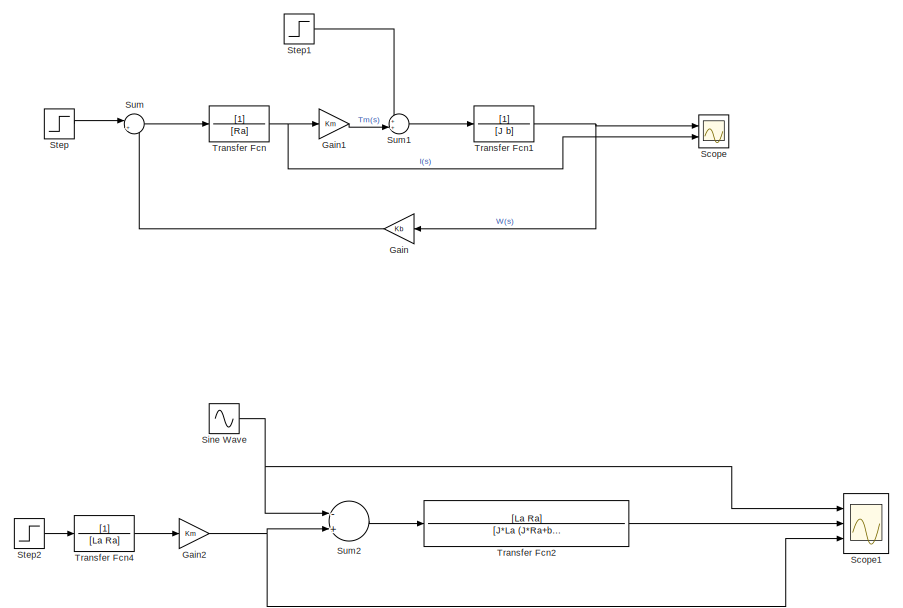
[diagram: root canvas - part 1/5, top left region]
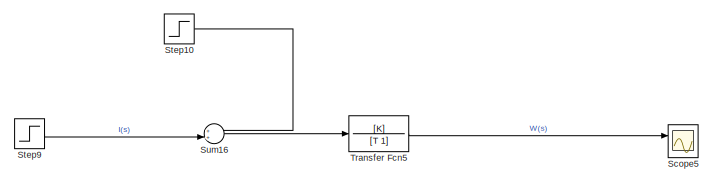
[diagram: root canvas - part 2/5, top center region]
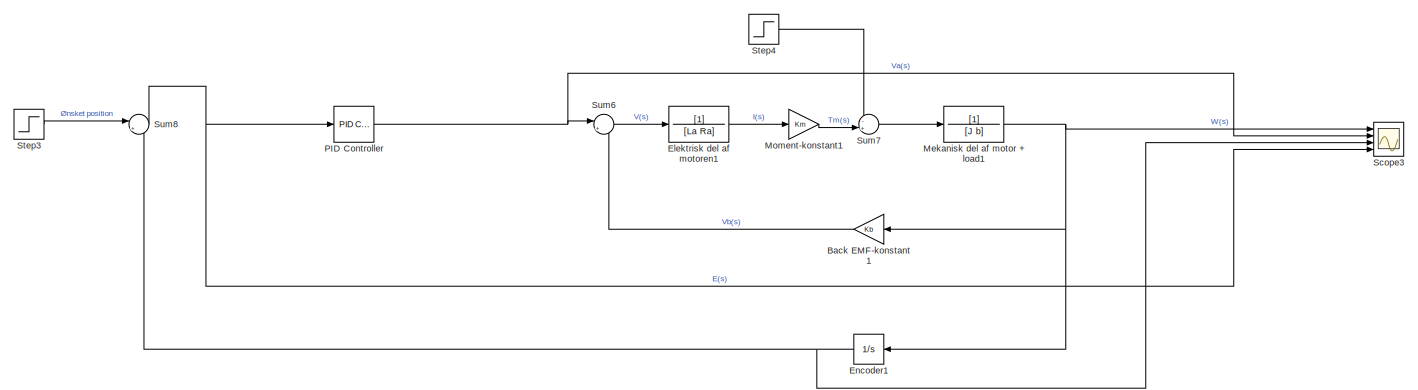
[diagram: root canvas - part 3/5, middle right region]
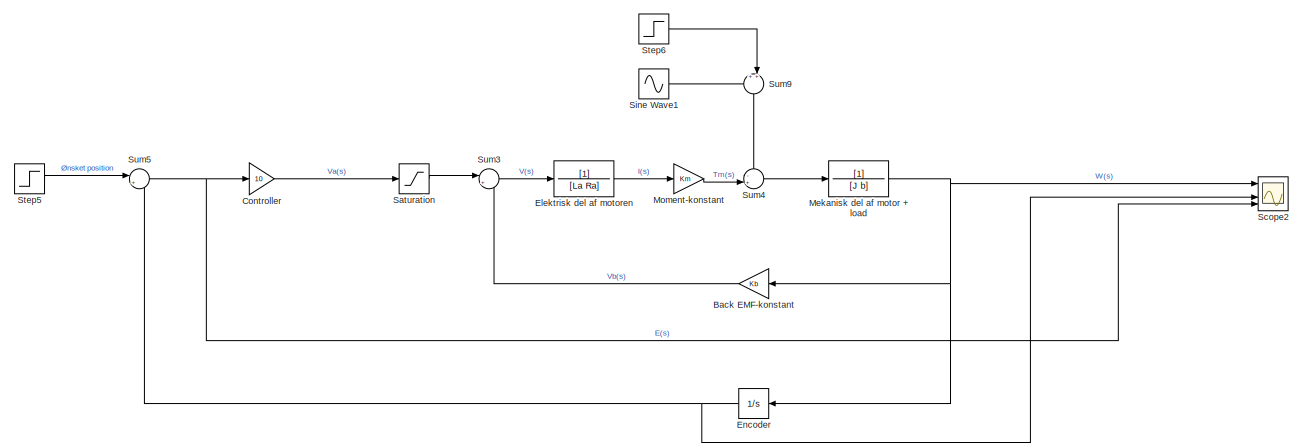
[diagram: root canvas - part 4/5, bottom left region]
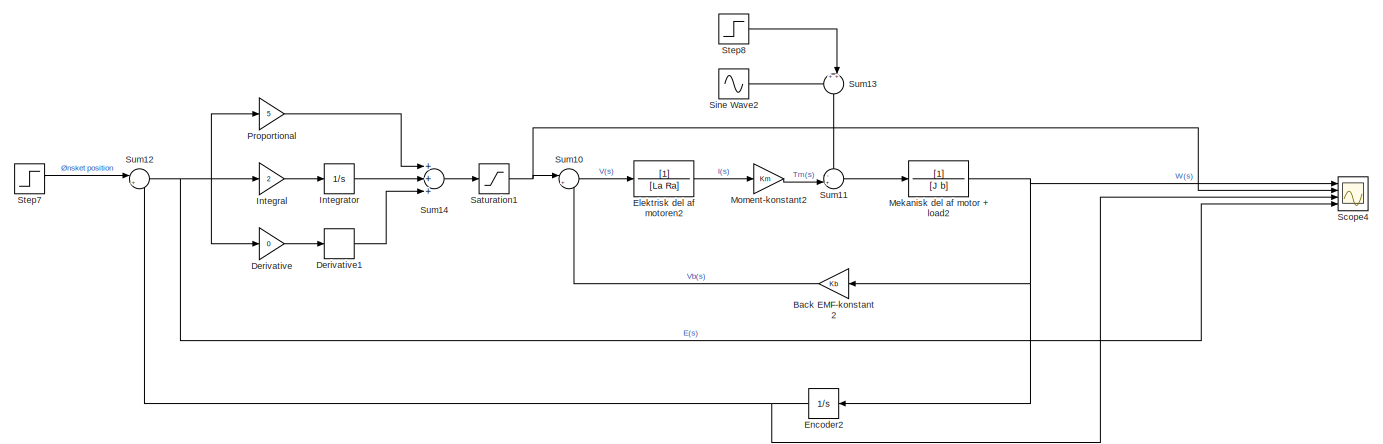
[diagram: root canvas - part 5/5, bottom right region]
MODEL slx_11c34193d39f
KIND model
CONFIG AbsTol = auto
CONFIG FixedStep = auto
CONFIG MaxStep = auto
CONFIG MinStep = auto
CONFIG RelTol = 1e-3
CONFIG SampleTimeConstraint = Unconstrained
CONFIG Solver = VariableStepAuto
CONFIG SolverMode = Auto
CONFIG SolverName = VariableStepAuto
CONFIG StartTime = 0.0
CONFIG StopTime = 5
BLOCK [Gain] Back EMF-konstant
  Gain = Kb
  OutDataTypeStr = Inherit: Inherit via internal rule
  ParamDataTypeStr = Inherit: Inherit via internal rule
  SaturateOnIntegerOverflow = off
BLOCK [Gain] Back EMF-konstant1
  Gain = Kb
  OutDataTypeStr = Inherit: Inherit via internal rule
  ParamDataTypeStr = Inherit: Inherit via internal rule
  SaturateOnIntegerOverflow = off
BLOCK [Gain] Back EMF-konstant2
  Gain = Kb
  OutDataTypeStr = Inherit: Inherit via internal rule
  ParamDataTypeStr = Inherit: Inherit via internal rule
  SaturateOnIntegerOverflow = off
BLOCK [Gain] Controller
  Gain = 10
  OutDataTypeStr = Inherit: Inherit via internal rule
  OutMax = 5
  OutMin = -5
  ParamDataTypeStr = Inherit: Inherit via internal rule
  SaturateOnIntegerOverflow = off
BLOCK [Gain] Derivative
  Gain = 0
  OutDataTypeStr = Inherit: Inherit via internal rule
  OutMax = 5
  OutMin = -5
  ParamDataTypeStr = Inherit: Inherit via internal rule
  SaturateOnIntegerOverflow = off
BLOCK [Derivative] Derivative1
BLOCK [TransferFcn] Elektrisk del af motoren
  Denominator = [La Ra]
BLOCK [TransferFcn] Elektrisk del af motoren1
  Denominator = [La Ra]
BLOCK [TransferFcn] Elektrisk del af motoren2
  Denominator = [La Ra]
BLOCK [Integrator] Encoder
  Ports = [1, 1]
BLOCK [Integrator] Encoder1
  Ports = [1, 1]
BLOCK [Integrator] Encoder2
  Ports = [1, 1]
BLOCK [Gain] Gain
  Gain = Kb
  OutDataTypeStr = Inherit: Inherit via internal rule
  ParamDataTypeStr = Inherit: Inherit via internal rule
  SaturateOnIntegerOverflow = off
BLOCK [Gain] Gain1
  Gain = Km
  OutDataTypeStr = Inherit: Inherit via internal rule
  ParamDataTypeStr = Inherit: Inherit via internal rule
  SaturateOnIntegerOverflow = off
BLOCK [Gain] Gain2
  Gain = Km
  OutDataTypeStr = Inherit: Inherit via internal rule
  ParamDataTypeStr = Inherit: Inherit via internal rule
  SaturateOnIntegerOverflow = off
BLOCK [Gain] Integral
  Gain = 2
  OutDataTypeStr = Inherit: Inherit via internal rule
  OutMax = 5
  OutMin = -5
  ParamDataTypeStr = Inherit: Inherit via internal rule
  SaturateOnIntegerOverflow = off
BLOCK [Integrator] Integrator
  Ports = [1, 1]
BLOCK [TransferFcn] Mekanisk del af motor + load
  Denominator = [J b]
BLOCK [TransferFcn] Mekanisk del af motor + load1
  Denominator = [J b]
BLOCK [TransferFcn] Mekanisk del af motor + load2
  Denominator = [J b]
BLOCK [Gain] Moment-konstant
  Gain = Km
  OutDataTypeStr = Inherit: Inherit via internal rule
  ParamDataTypeStr = Inherit: Inherit via internal rule
  SaturateOnIntegerOverflow = off
BLOCK [Gain] Moment-konstant1
  Gain = Km
  OutDataTypeStr = Inherit: Inherit via internal rule
  ParamDataTypeStr = Inherit: Inherit via internal rule
  SaturateOnIntegerOverflow = off
BLOCK [Gain] Moment-konstant2
  Gain = Km
  OutDataTypeStr = Inherit: Inherit via internal rule
  ParamDataTypeStr = Inherit: Inherit via internal rule
  SaturateOnIntegerOverflow = off
BLOCK [Reference] PID Controller  REF=simulink/Continuous/PID Controller
  Ports = [1, 1]
  SourceBlock = simulink/Continuous/PID Controller
  SourceType = PID 1dof
BLOCK [Gain] Proportional
  Gain = 5
  OutDataTypeStr = Inherit: Inherit via internal rule
  OutMax = 5
  OutMin = -5
  ParamDataTypeStr = Inherit: Inherit via internal rule
  SaturateOnIntegerOverflow = off
BLOCK [Saturate] Saturation
  InputPortMap = u0
  LowerLimit = -5
  Ports = [1, 1]
  UpperLimit = 5
BLOCK [Saturate] Saturation1
  InputPortMap = u0
  LowerLimit = -5
  Ports = [1, 1]
  UpperLimit = 5
BLOCK [Scope] Scope
  NumInputPorts = 2
  Ports = [2]
  ScopeSpecificationString = Simulink.scopes.TimeScopeBlockCfg('CurrentConfiguration', extmgr.ConfigurationSet(extmgr.Configuration('Core','General UI',true),extmgr.Configuration('Core','Source UI',true),extmgr.Configuration('Sources','WiredSimulink',true),extmgr.Configuration('Visuals','Time Domain',true,'SerializedDisplays',{struct('MinYLimReal','-2.45897','MaxYLimReal','54.75838','YLabelReal','','MinYLimMag','0.00000','Max...<+1406ch>
BLOCK [Scope] Scope1
  NumInputPorts = 3
  Ports = [3]
  ScopeSpecificationString = Simulink.scopes.TimeScopeBlockCfg('CurrentConfiguration', extmgr.ConfigurationSet(extmgr.Configuration('Core','General UI',true),extmgr.Configuration('Core','Source UI',true),extmgr.Configuration('Sources','WiredSimulink',true,'DataLoggingVariableName','ScopeData1'),extmgr.Configuration('Visuals','Time Domain',true,'SerializedDisplays',{struct('MinYLimReal','-14.23528','MaxYLimReal','52.55032','YL...<+1470ch>
BLOCK [Scope] Scope2
  NumInputPorts = 4
  Ports = [4]
  ScopeSpecificationString = Simulink.scopes.TimeScopeBlockCfg('CurrentConfiguration', extmgr.ConfigurationSet(extmgr.Configuration('Core','General UI',true),extmgr.Configuration('Core','Source UI',true),extmgr.Configuration('Sources','WiredSimulink',true,'DataLoggingVariableName','ScopeData1'),extmgr.Configuration('Visuals','Time Domain',true,'SerializedDisplays',{struct('MinYLimReal','-4.75647','MaxYLimReal','11.97012','YLa...<+1470ch>
BLOCK [Scope] Scope3
  NumInputPorts = 4
  Ports = [4]
  ScopeSpecificationString = Simulink.scopes.TimeScopeBlockCfg('CurrentConfiguration', extmgr.ConfigurationSet(extmgr.Configuration('Core','General UI',true),extmgr.Configuration('Core','Source UI',true),extmgr.Configuration('Sources','WiredSimulink',true,'DataLoggingVariableName','ScopeData2'),extmgr.Configuration('Visuals','Time Domain',true,'SerializedDisplays',{struct('MinYLimReal','-5.19678','MaxYLimReal','15.69446','YLa...<+1464ch>
BLOCK [Scope] Scope4
  NumInputPorts = 4
  Ports = [4]
  ScopeSpecificationString = Simulink.scopes.TimeScopeBlockCfg('CurrentConfiguration', extmgr.ConfigurationSet(extmgr.Configuration('Core','General UI',true),extmgr.Configuration('Core','Source UI',true),extmgr.Configuration('Sources','WiredSimulink',true,'DataLoggingVariableName','ScopeData3'),extmgr.Configuration('Visuals','Time Domain',true,'SerializedDisplays',{struct('MinYLimReal','-6.00051','MaxYLimReal','15.08553','YLa...<+1470ch>
BLOCK [Scope] Scope5
  NumInputPorts = 2
  Ports = [2]
  ScopeSpecificationString = Simulink.scopes.TimeScopeBlockCfg('CurrentConfiguration', extmgr.ConfigurationSet(extmgr.Configuration('Core','General UI',true),extmgr.Configuration('Core','Source UI',true),extmgr.Configuration('Sources','WiredSimulink',true,'DataLoggingVariableName','ScopeData1'),extmgr.Configuration('Visuals','Time Domain',true,'SerializedDisplays',{struct('MinYLimReal','-314.16007','MaxYLimReal','2827.44065',...<+1467ch>
BLOCK [Sin] Sine Wave
  Amplitude = 0.3
  Frequency = 0.2
  Ports = [0, 1]
  SampleTime = 0
BLOCK [Sin] Sine Wave1
  Amplitude = 0
  Frequency = 0.1
  Ports = [0, 1]
  SampleTime = 0
BLOCK [Sin] Sine Wave2
  Amplitude = 0
  Frequency = 150
  Ports = [0, 1]
  SampleTime = 0
BLOCK [Step] Step
  After = 12
  SampleTime = 0
BLOCK [Step] Step1
  After = 0
  SampleTime = 0
  Time = 10
BLOCK [Step] Step10
  After = 0
  SampleTime = 0
  Time = 10
BLOCK [Step] Step2
  After = 10
  SampleTime = 0
BLOCK [Step] Step3
  After = 10
  SampleTime = 0
BLOCK [Step] Step4
  After = 0.3
  SampleTime = 0
  Time = 10
BLOCK [Step] Step5
  After = 0
  SampleTime = 0
BLOCK [Step] Step6
  After = 0.3
  SampleTime = 0
  Time = 10
BLOCK [Step] Step7
  After = 10
  SampleTime = 0
BLOCK [Step] Step8
  After = 0
  SampleTime = 0
  Time = 10
BLOCK [Step] Step9
  After = 12
  SampleTime = 0
BLOCK [Sum] Sum
  IconShape = round
  InputSameDT = off
  Inputs = |+-
  OutDataTypeStr = Inherit: Inherit via internal rule
  Ports = [2, 1]
  SaturateOnIntegerOverflow = off
BLOCK [Sum] Sum1
  IconShape = round
  InputSameDT = off
  Inputs = ++|
  OutDataTypeStr = Inherit: Inherit via internal rule
  Ports = [2, 1]
  SaturateOnIntegerOverflow = off
BLOCK [Sum] Sum10
  IconShape = round
  InputSameDT = off
  Inputs = |+-
  OutDataTypeStr = Inherit: Inherit via internal rule
  Ports = [2, 1]
  SaturateOnIntegerOverflow = off
BLOCK [Sum] Sum11
  IconShape = round
  InputSameDT = off
  Inputs = -+|
  OutDataTypeStr = Inherit: Inherit via internal rule
  Ports = [2, 1]
  SaturateOnIntegerOverflow = off
BLOCK [Sum] Sum12
  IconShape = round
  InputSameDT = off
  Inputs = |+-
  OutDataTypeStr = Inherit: Inherit via internal rule
  Ports = [2, 1]
  SaturateOnIntegerOverflow = off
BLOCK [Sum] Sum13
  IconShape = round
  InputSameDT = off
  Inputs = ++|
  OutDataTypeStr = Inherit: Inherit via internal rule
  Ports = [2, 1]
  SaturateOnIntegerOverflow = off
BLOCK [Sum] Sum14
  InputSameDT = off
  Inputs = +++
  OutDataTypeStr = Inherit: Inherit via internal rule
  Ports = [3, 1]
  SaturateOnIntegerOverflow = off
BLOCK [Sum] Sum16
  IconShape = round
  InputSameDT = off
  Inputs = ++|
  OutDataTypeStr = Inherit: Inherit via internal rule
  Ports = [2, 1]
  SaturateOnIntegerOverflow = off
BLOCK [Sum] Sum2
  InputSameDT = off
  Inputs = -+
  OutDataTypeStr = Inherit: Inherit via internal rule
  Ports = [2, 1]
  SaturateOnIntegerOverflow = off
BLOCK [Sum] Sum3
  IconShape = round
  InputSameDT = off
  Inputs = |+-
  OutDataTypeStr = Inherit: Inherit via internal rule
  Ports = [2, 1]
  SaturateOnIntegerOverflow = off
BLOCK [Sum] Sum4
  IconShape = round
  InputSameDT = off
  Inputs = -+|
  OutDataTypeStr = Inherit: Inherit via internal rule
  Ports = [2, 1]
  SaturateOnIntegerOverflow = off
BLOCK [Sum] Sum5
  IconShape = round
  InputSameDT = off
  Inputs = |+-
  OutDataTypeStr = Inherit: Inherit via internal rule
  Ports = [2, 1]
  SaturateOnIntegerOverflow = off
BLOCK [Sum] Sum6
  IconShape = round
  InputSameDT = off
  Inputs = |+-
  OutDataTypeStr = Inherit: Inherit via internal rule
  Ports = [2, 1]
  SaturateOnIntegerOverflow = off
BLOCK [Sum] Sum7
  IconShape = round
  InputSameDT = off
  Inputs = -+|
  OutDataTypeStr = Inherit: Inherit via internal rule
  Ports = [2, 1]
  SaturateOnIntegerOverflow = off
BLOCK [Sum] Sum8
  IconShape = round
  InputSameDT = off
  Inputs = |+-
  OutDataTypeStr = Inherit: Inherit via internal rule
  Ports = [2, 1]
  SaturateOnIntegerOverflow = off
BLOCK [Sum] Sum9
  IconShape = round
  InputSameDT = off
  Inputs = ++|
  OutDataTypeStr = Inherit: Inherit via internal rule
  Ports = [2, 1]
  SaturateOnIntegerOverflow = off
BLOCK [TransferFcn] Transfer Fcn
  Denominator = [Ra]
BLOCK [TransferFcn] Transfer Fcn1
  Denominator = [J b]
BLOCK [TransferFcn] Transfer Fcn2
  Denominator = [J*La (J*Ra+b*La) (b*Ra+Kb*Km)]
  Numerator = [La Ra]
BLOCK [TransferFcn] Transfer Fcn4
  Denominator = [La Ra]
BLOCK [TransferFcn] Transfer Fcn5
  Denominator = [T 1]
  Numerator = [K]
LINE Back EMF-konstant1:1 -> Sum6:2
LINE Back EMF-konstant2:1 -> Sum10:2
LINE Back EMF-konstant:1 -> Sum3:2
LINE Controller:1 -> Saturation:1
LINE Derivative1:1 -> Sum14:3
LINE Derivative:1 -> Derivative1:1
LINE Elektrisk del af motoren1:1 -> Moment-konstant1:1
LINE Elektrisk del af motoren2:1 -> Moment-konstant2:1
LINE Elektrisk del af motoren:1 -> Moment-konstant:1
NET Encoder1:1 -> Scope3:3, Sum8:2
NET Encoder2:1 -> Scope4:3, Sum12:2
NET Encoder:1 -> Scope2:3, Sum5:2
LINE Gain1:1 -> Sum1:2
NET Gain2:1 -> Scope1:3, Sum2:2
LINE Gain:1 -> Sum:2
LINE Integral:1 -> Integrator:1
LINE Integrator:1 -> Sum14:2
NET Mekanisk del af motor + load1:1 -> Back EMF-konstant1:1, Encoder1:1, Scope3:1
NET Mekanisk del af motor + load2:1 -> Back EMF-konstant2:1, Encoder2:1, Scope4:1
NET Mekanisk del af motor + load:1 -> Back EMF-konstant:1, Encoder:1, Scope2:1
LINE Moment-konstant1:1 -> Sum7:2
LINE Moment-konstant2:1 -> Sum11:2
LINE Moment-konstant:1 -> Sum4:2
NET PID Controller:1 -> Scope3:2, Sum6:1
LINE Proportional:1 -> Sum14:1
NET Saturation1:1 -> Scope4:2, Sum10:1
LINE Saturation:1 -> Sum3:1
LINE Sine Wave1:1 -> Sum9:1
LINE Sine Wave2:1 -> Sum13:1
NET Sine Wave:1 -> Scope1:1, Sum2:1
LINE Step10:1 -> Sum16:1
LINE Step1:1 -> Sum1:1
LINE Step2:1 -> Transfer Fcn4:1
LINE Step3:1 -> Sum8:1
LINE Step4:1 -> Sum7:1
LINE Step5:1 -> Sum5:1
LINE Step6:1 -> Sum9:2
LINE Step7:1 -> Sum12:1
LINE Step8:1 -> Sum13:2
LINE Step9:1 -> Sum16:2
LINE Step:1 -> Sum:1
LINE Sum10:1 -> Elektrisk del af motoren2:1
LINE Sum11:1 -> Mekanisk del af motor + load2:1
NET Sum12:1 -> Derivative:1, Integral:1, Proportional:1, Scope4:4
LINE Sum13:1 -> Sum11:1
LINE Sum14:1 -> Saturation1:1
LINE Sum16:1 -> Transfer Fcn5:1
LINE Sum1:1 -> Transfer Fcn1:1
LINE Sum2:1 -> Transfer Fcn2:1
LINE Sum3:1 -> Elektrisk del af motoren:1
LINE Sum4:1 -> Mekanisk del af motor + load:1
NET Sum5:1 -> Controller:1, Scope2:4
LINE Sum6:1 -> Elektrisk del af motoren1:1
LINE Sum7:1 -> Mekanisk del af motor + load1:1
NET Sum8:1 -> PID Controller:1, Scope3:4
LINE Sum9:1 -> Sum4:1
LINE Sum:1 -> Transfer Fcn:1
NET Transfer Fcn1:1 -> Gain:1, Scope:1
LINE Transfer Fcn2:1 -> Scope1:2
LINE Transfer Fcn4:1 -> Gain2:1
LINE Transfer Fcn5:1 -> Scope5:1
NET Transfer Fcn:1 -> Gain1:1, Scope:2
note: NET lines group one-source signal fan-out (src -> all destinations, sorted); 1:1 wires keep LINE
